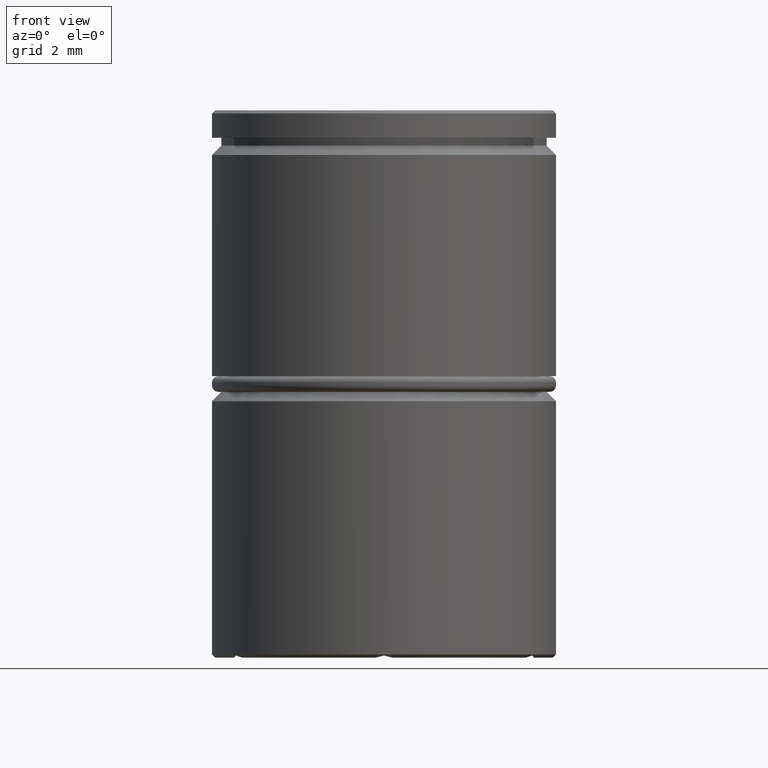
[diagram: clean part render]
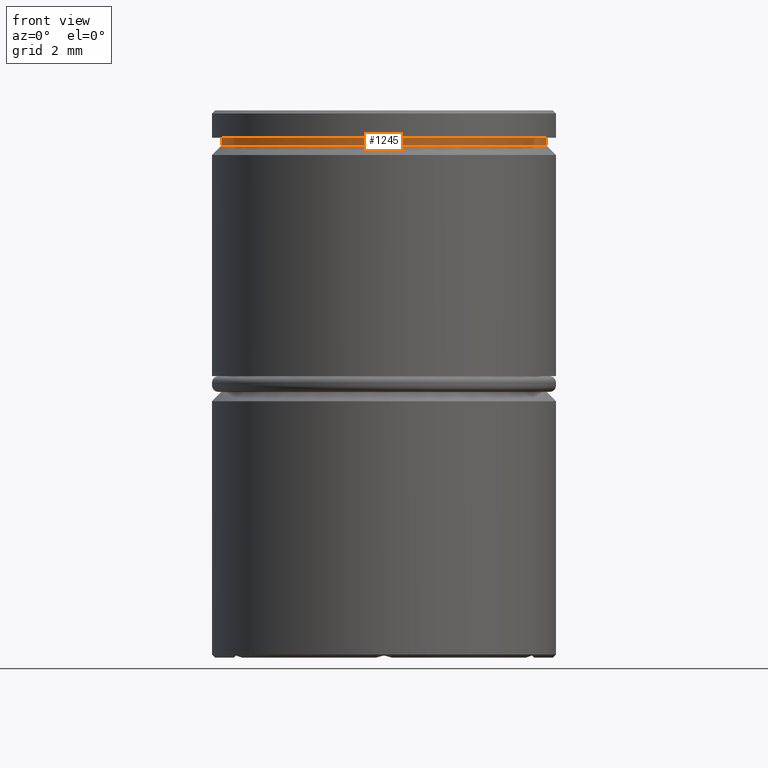
[diagram: same view with one face highlighted and labeled with its STEP entity id]
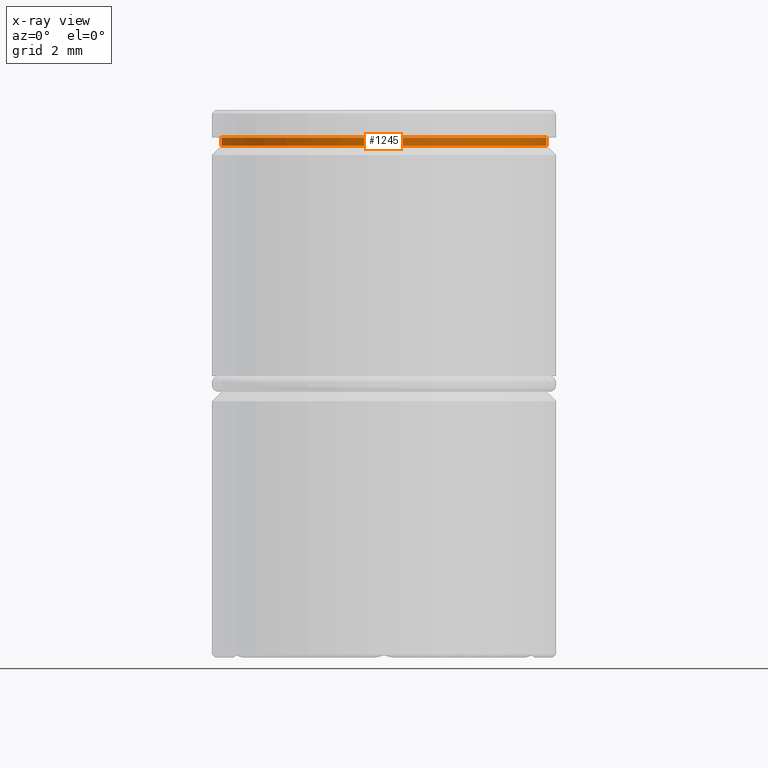
[diagram: x-ray of the same camera — body ghosted, the highlighted face saturated]
A machine part, front view. The second image highlights one B-rep face of the part: STEP entity #1245.
The next image is the same camera in x-ray: the body ghosted, the highlighted face saturated — about 0% of this face is hidden behind the body in this view.
In plain terms, the highlighted cylindrical surface (partial cylindrical patch) has radius 5.2 mm, axis along (-0, -0, 1).
Its self-contained STEP definition (entity closure, byte-faithful):
#25 = EDGE_CURVE ( 'NONE', #274, #1236, #872, .T. ) ;
#78 = DIRECTION ( 'NONE',  ( 1.000000000000000000, 0.000000000000000000, 0.000000000000000000 ) ) ;
#129 = CARTESIAN_POINT ( 'NONE',  ( 5.200000000000000178, 0.000000000000000000, -0.8749999999999998890 ) ) ;
#161 = VECTOR ( 'NONE', #508, 1000.000000000000000 ) ;
#174 = DIRECTION ( 'NONE',  ( 1.000000000000000000, 0.000000000000000000, 0.000000000000000000 ) ) ;
#218 = EDGE_CURVE ( 'NONE', #1236, #1358, #326, .T. ) ;
#274 = VERTEX_POINT ( 'NONE', #1174 ) ;
#316 = VERTEX_POINT ( 'NONE', #332 ) ;
#326 = LINE ( 'NONE', #541, #1318 ) ;
#332 = CARTESIAN_POINT ( 'NONE',  ( -5.200000000000000178, 6.368163355566236381E-16, -0.8749999999999998890 ) ) ;
#349 = EDGE_CURVE ( 'NONE', #316, #1358, #694, .T. ) ;
#380 = AXIS2_PLACEMENT_3D ( 'NONE', #1127, #924, #174 ) ;
#386 = AXIS2_PLACEMENT_3D ( 'NONE', #1360, #934, #78 ) ;
#389 = CARTESIAN_POINT ( 'NONE',  ( -5.200000000000000178, 6.368163355566236381E-16, 0.000000000000000000 ) ) ;
#430 = AXIS2_PLACEMENT_3D ( 'NONE', #1320, #666, #1098 ) ;
#453 = ORIENTED_EDGE ( 'NONE', *, *, #218, .T. ) ;
#501 = ORIENTED_EDGE ( 'NONE', *, *, #25, .T. ) ;
#508 = DIRECTION ( 'NONE',  ( -0.000000000000000000, -0.000000000000000000, 1.000000000000000000 ) ) ;
#513 = FACE_OUTER_BOUND ( 'NONE', #1323, .T. ) ;
#541 = CARTESIAN_POINT ( 'NONE',  ( 5.200000000000000178, 0.000000000000000000, 0.000000000000000000 ) ) ;
#666 = DIRECTION ( 'NONE',  ( -0.000000000000000000, -0.000000000000000000, 1.000000000000000000 ) ) ;
#694 = CIRCLE ( 'NONE', #430, 5.200000000000000178 ) ;
#711 = LINE ( 'NONE', #389, #161 ) ;
#745 = DIRECTION ( 'NONE',  ( -0.000000000000000000, -0.000000000000000000, 1.000000000000000000 ) ) ;
#872 = CIRCLE ( 'NONE', #380, 5.200000000000000178 ) ;
#924 = DIRECTION ( 'NONE',  ( -0.000000000000000000, -0.000000000000000000, 1.000000000000000000 ) ) ;
#934 = DIRECTION ( 'NONE',  ( -0.000000000000000000, -0.000000000000000000, 1.000000000000000000 ) ) ;
#965 = ORIENTED_EDGE ( 'NONE', *, *, #1218, .F. ) ;
#1098 = DIRECTION ( 'NONE',  ( 1.000000000000000000, 0.000000000000000000, 0.000000000000000000 ) ) ;
#1127 = CARTESIAN_POINT ( 'NONE',  ( 0.000000000000000000, 0.000000000000000000, -1.125000000000000222 ) ) ;
#1130 = CARTESIAN_POINT ( 'NONE',  ( 5.200000000000000178, 0.000000000000000000, -1.125000000000000222 ) ) ;
#1145 = ORIENTED_EDGE ( 'NONE', *, *, #349, .F. ) ;
#1174 = CARTESIAN_POINT ( 'NONE',  ( -5.200000000000000178, 6.368163355566236381E-16, -1.125000000000000222 ) ) ;
#1218 = EDGE_CURVE ( 'NONE', #274, #316, #711, .T. ) ;
#1236 = VERTEX_POINT ( 'NONE', #1130 ) ;
#1245 = ADVANCED_FACE ( 'NONE', ( #513 ), #1354, .T. ) ;
#1318 = VECTOR ( 'NONE', #745, 1000.000000000000000 ) ;
#1320 = CARTESIAN_POINT ( 'NONE',  ( 0.000000000000000000, 0.000000000000000000, -0.8749999999999998890 ) ) ;
#1323 = EDGE_LOOP ( 'NONE', ( #965, #501, #453, #1145 ) ) ;
#1354 = CYLINDRICAL_SURFACE ( 'NONE', #386, 5.200000000000000178 ) ;
#1358 = VERTEX_POINT ( 'NONE', #129 ) ;
#1360 = CARTESIAN_POINT ( 'NONE',  ( 0.000000000000000000, 0.000000000000000000, 0.000000000000000000 ) ) ;